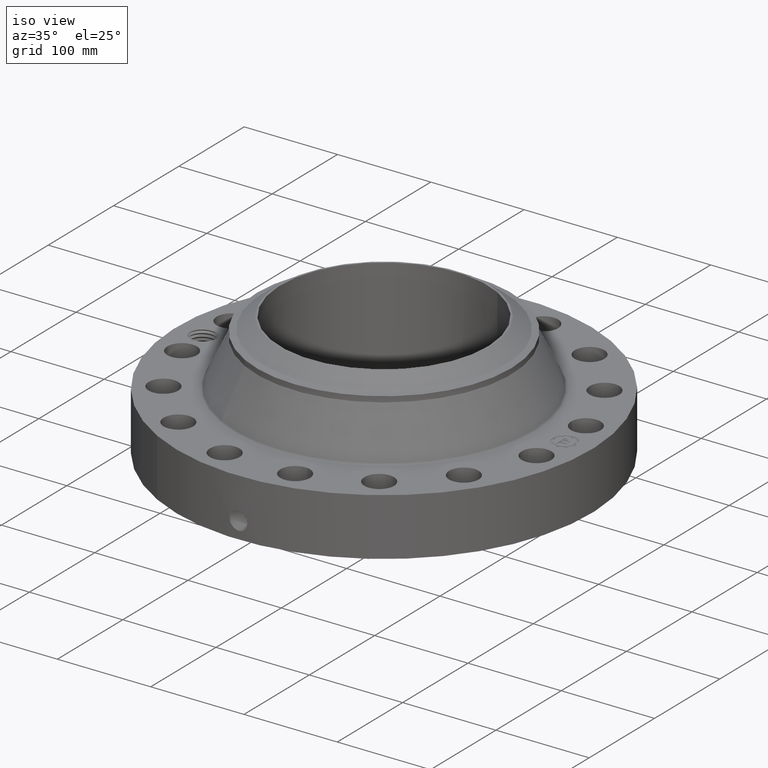
[diagram: clean part render]
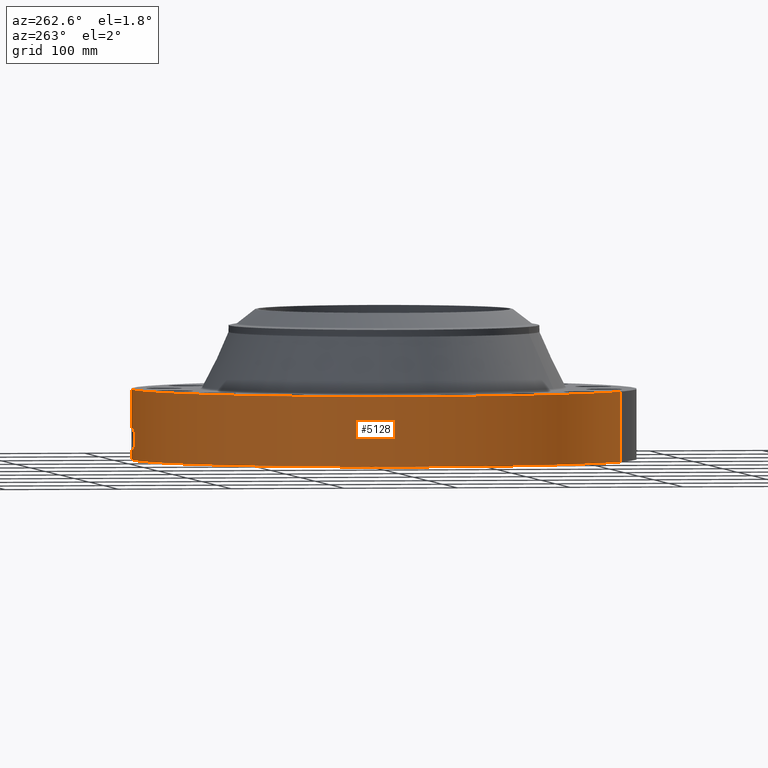
[diagram: tour spotlight — one face highlighted and labeled with its STEP entity id]
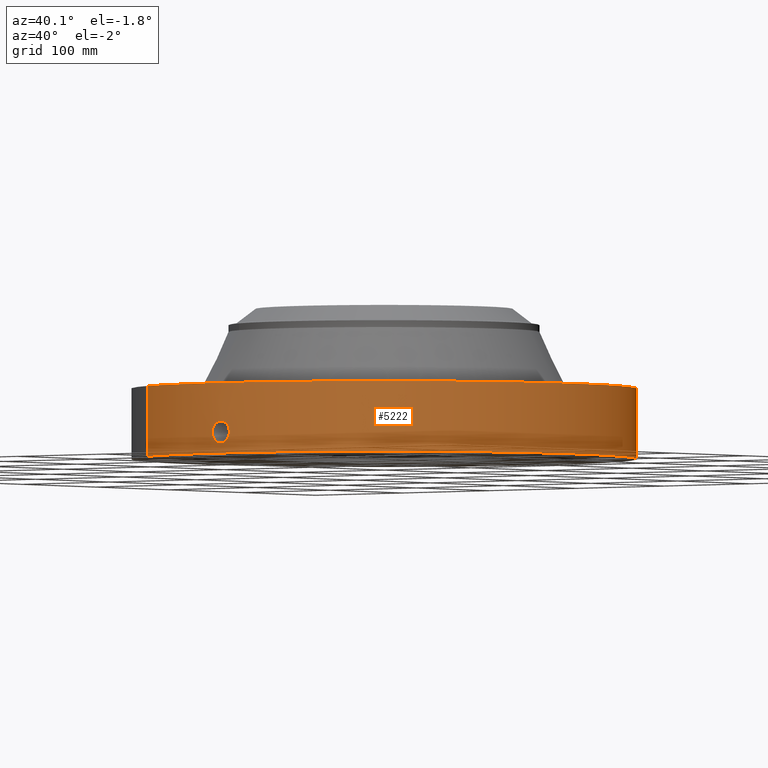
[diagram: tour spotlight — one face highlighted and labeled with its STEP entity id]
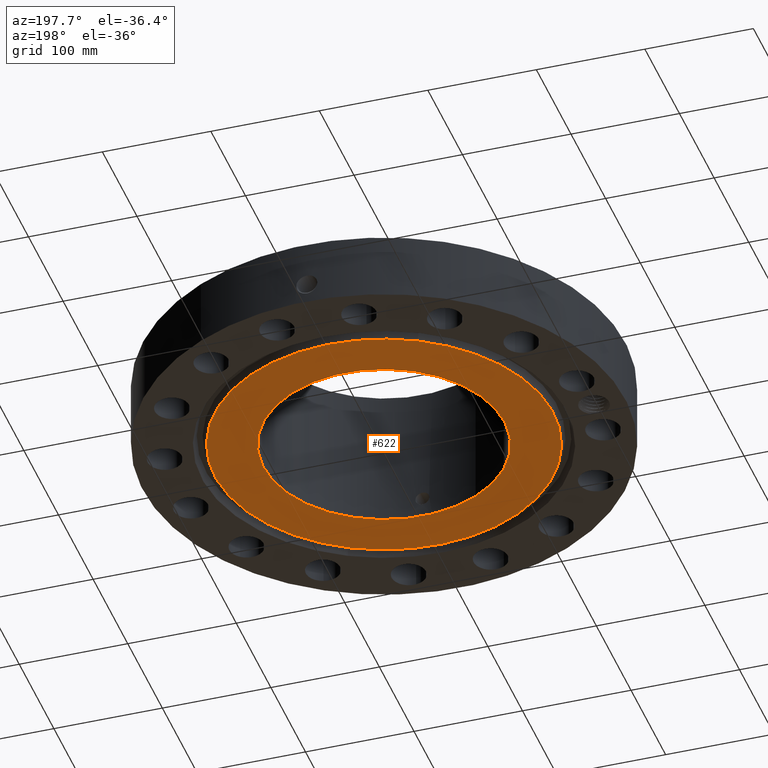
[diagram: tour spotlight — one face highlighted and labeled with its STEP entity id]
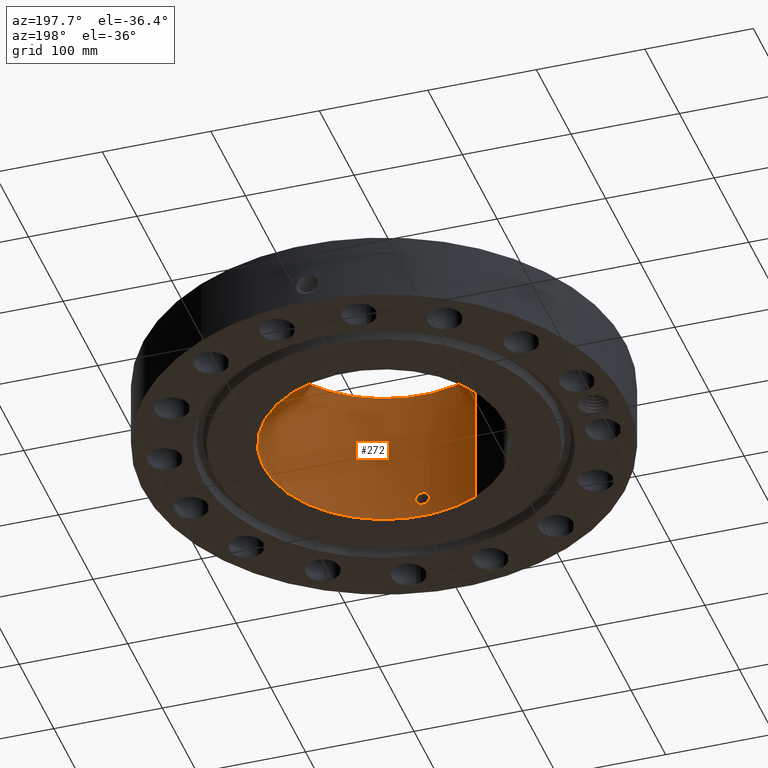
[diagram: tour spotlight — one face highlighted and labeled with its STEP entity id]
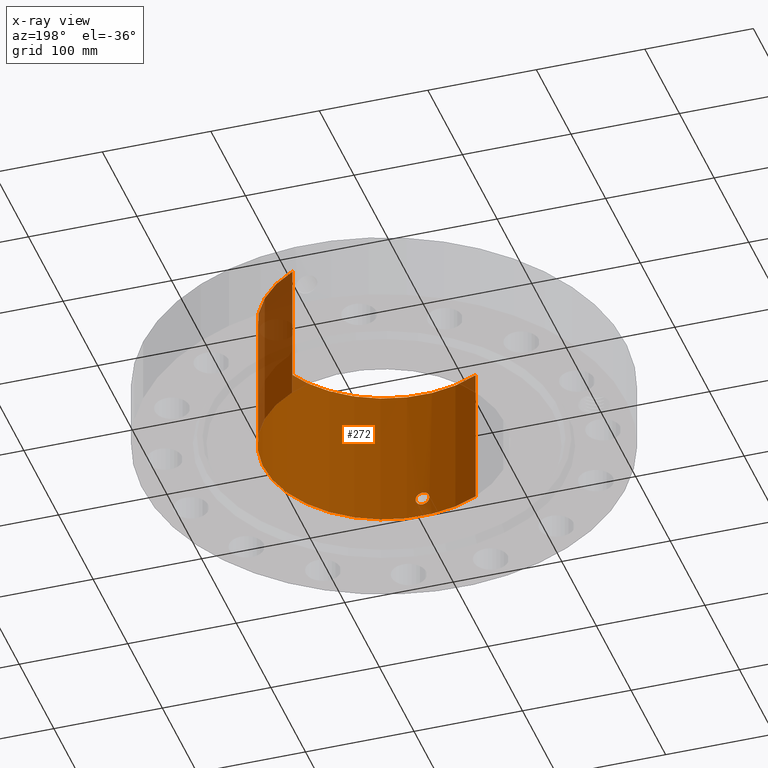
[diagram: x-ray of the same camera — body ghosted, this tour face saturated]
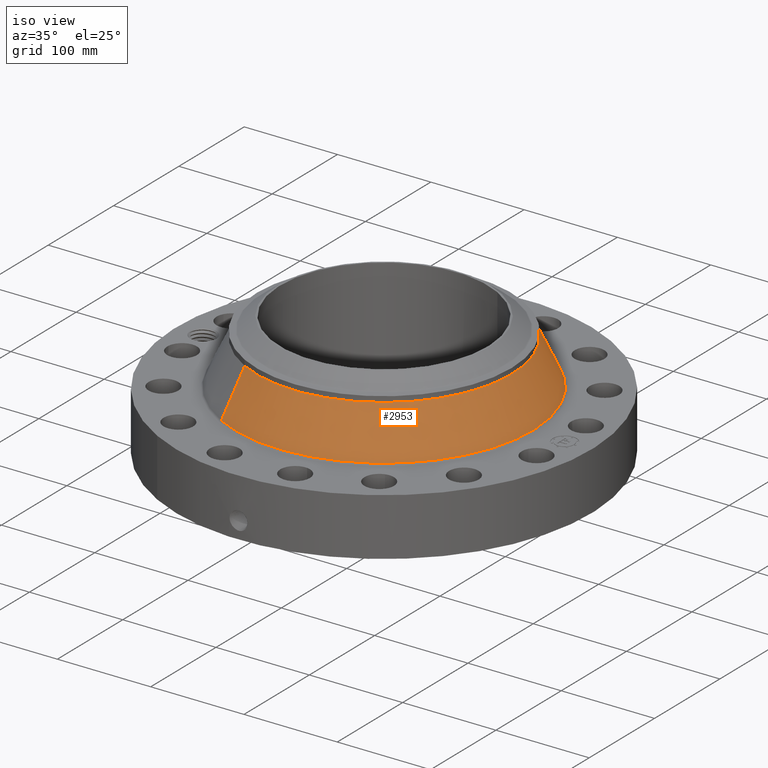
[diagram: tour spotlight — one face highlighted and labeled with its STEP entity id]
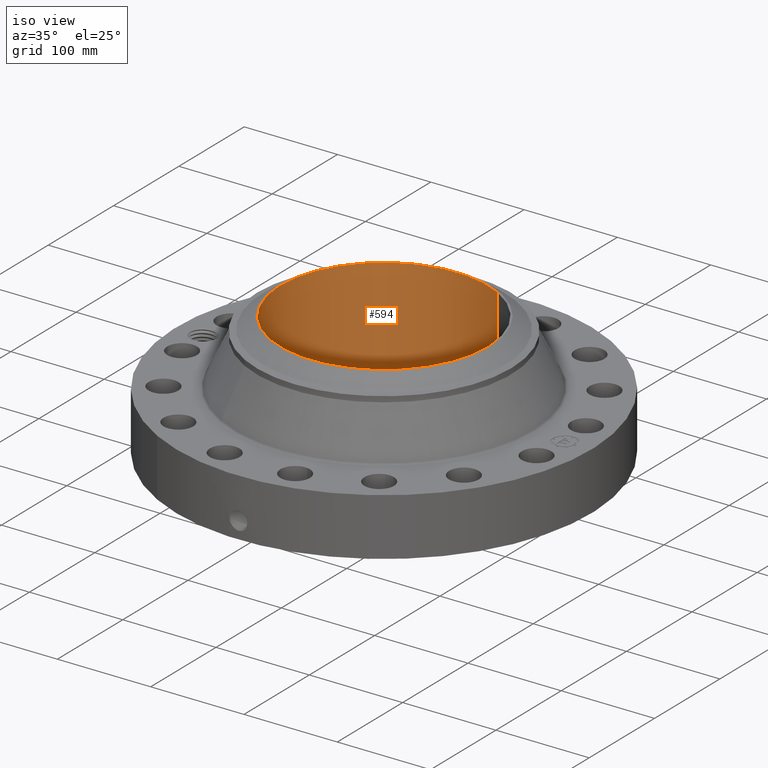
[diagram: tour spotlight — one face highlighted and labeled with its STEP entity id]
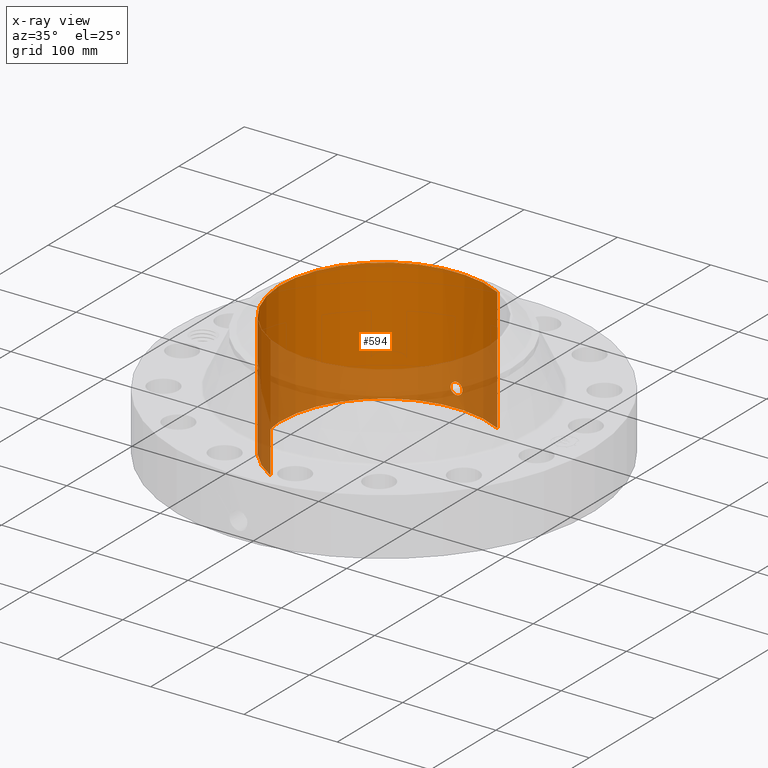
[diagram: x-ray of the same camera — body ghosted, this tour face saturated]
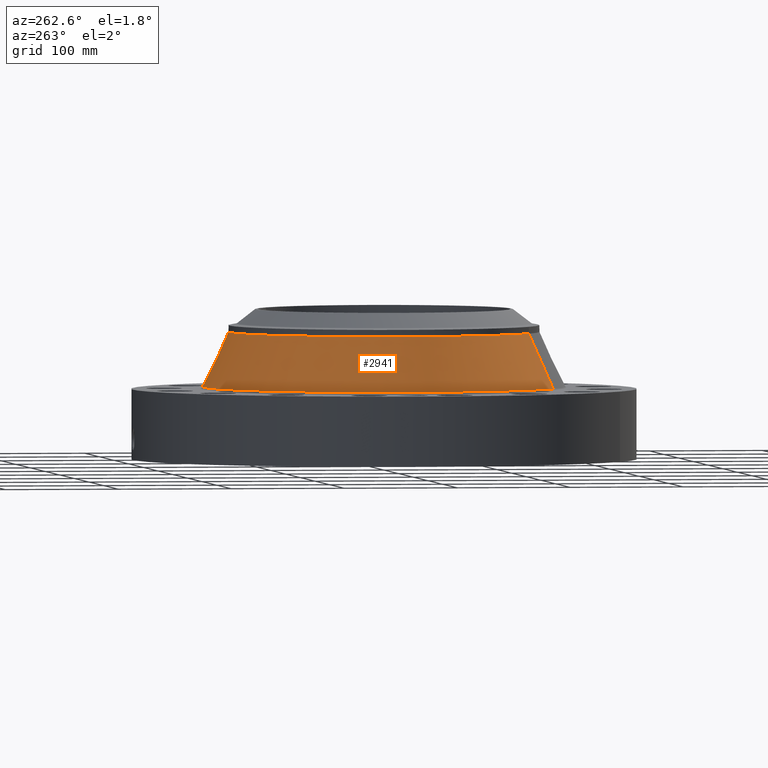
[diagram: tour spotlight — one face highlighted and labeled with its STEP entity id]
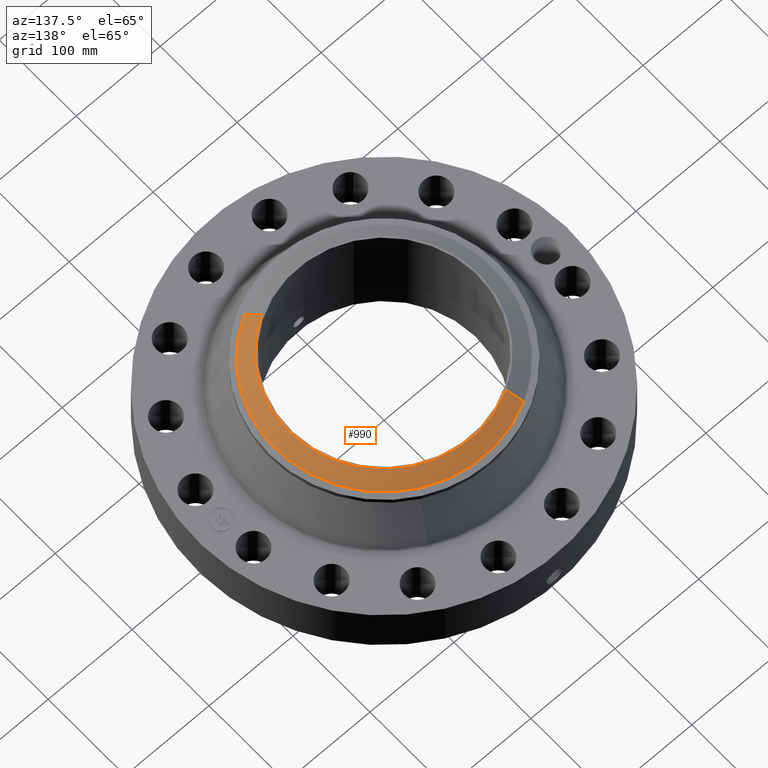
[diagram: tour spotlight — one face highlighted and labeled with its STEP entity id]
A machine part: a face-by-face anatomy tour. The part has 810 B-rep faces; the first image is the clean iso view, then the 8 largest visible faces are spotlighted one at a time (largest first), each with its STEP entity span.

Face 1 — auxiliary view, entity #5128. In plain terms, the highlighted cylindrical surface (partial cylindrical patch) has radius 222.25 mm, axis along (0, 0, -1).
Definition (entity closure, byte-faithful):
#3849=AXIS2_PLACEMENT_3D('Circle Axis2P3D',#3847,#3848,$) ;
#4411=AXIS2_PLACEMENT_3D('Circle Axis2P3D',#4409,#4410,$) ;
#5023=AXIS2_PLACEMENT_3D('Cylinder Axis2P3D',#5020,#5021,#5022) ;
#3847=CARTESIAN_POINT('Axis2P3D Location',(0.,0.,0.)) ;
#3851=CARTESIAN_POINT('Vertex',(-4.1949734628,-7.67884741657,5.59482469102E-016)) ;
#3853=CARTESIAN_POINT('Vertex',(4.1949734628,7.67884741657,5.59482469102E-016)) ;
#4404=CARTESIAN_POINT('Vertex',(4.1949734628,7.67884741657,2.43200000001)) ;
#4406=CARTESIAN_POINT('Vertex',(-4.1949734628,-7.67884741657,2.43200000001)) ;
#4409=CARTESIAN_POINT('Axis2P3D Location',(0.,0.,2.43200000001)) ;
#5020=CARTESIAN_POINT('Axis2P3D Location',(0.,0.,2.59600000001)) ;
#5025=CARTESIAN_POINT('Line Origine',(-4.1949734628,-7.67884741657,1.216)) ;
#5030=CARTESIAN_POINT('Line Origine',(4.1949734628,7.67884741657,1.216)) ;
#5042=CARTESIAN_POINT('Control Point',(-0.0581082113448,8.74980705138,1.09931275918)) ;
#5043=CARTESIAN_POINT('Control Point',(-0.0391507428817,8.74993294954,1.10247040508)) ;
#5044=CARTESIAN_POINT('Control Point',(-0.0199351377873,8.7499983976,1.10407954749)) ;
#5045=CARTESIAN_POINT('Control Point',(-0.000716211241924,8.74999997072,1.10411849893)) ;
#5046=CARTESIAN_POINT('Vertex',(-0.058094103343,8.74980740847,1.09931539446)) ;
#5048=CARTESIAN_POINT('Vertex',(-0.000716087015016,8.74999997073,1.10411850938)) ;
#5052=CARTESIAN_POINT('Control Point',(-0.0580939951518,8.74980714578,1.09931480802)) ;
#5053=CARTESIAN_POINT('Control Point',(-0.0974875527284,8.74954559383,1.09448302669)) ;
#5054=CARTESIAN_POINT('Control Point',(-0.136129795783,8.74901297423,1.08246986474)) ;
#5055=CARTESIAN_POINT('Control Point',(-0.171610206376,8.74831697744,1.06416185771)) ;
#5056=CARTESIAN_POINT('Vertex',(-0.171610206376,8.74831697744,1.06416185771)) ;
#5060=CARTESIAN_POINT('Control Point',(-0.0302669250486,8.74994765206,0.341133857002)) ;
#5061=CARTESIAN_POINT('Control Point',(-0.0865126194243,8.7497530927,0.348286208239)) ;
#5062=CARTESIAN_POINT('Control Point',(-0.14116376928,8.74911210118,0.36589965882)) ;
#5063=CARTESIAN_POINT('Control Point',(-0.191479456618,8.74808366168,0.393467512374)) ;
#5064=CARTESIAN_POINT('Control Point',(-0.264585195594,8.74612690955,0.452883889334)) ;
#5065=CARTESIAN_POINT('Control Point',(-0.31652846254,8.74430507499,0.529208859658)) ;
#5066=CARTESIAN_POINT('Control Point',(-0.33358370049,8.74365536444,0.561880812789)) ;
#5067=CARTESIAN_POINT('Control Point',(-0.368975035582,8.7422470228,0.654035266264)) ;
#5068=CARTESIAN_POINT('Control Point',(-0.375098719304,8.74194353704,0.752677612387)) ;
#5069=CARTESIAN_POINT('Control Point',(-0.366946086317,8.74231502189,0.814326508962)) ;
#5070=CARTESIAN_POINT('Control Point',(-0.333642995804,8.74374181876,0.91228717642)) ;
#5071=CARTESIAN_POINT('Control Point',(-0.27096648017,8.74586349126,0.992724215505)) ;
#5072=CARTESIAN_POINT('Control Point',(-0.241231379529,8.74676440465,1.0214701983)) ;
#5073=CARTESIAN_POINT('Control Point',(-0.207766158995,8.74760772896,1.04550526856)) ;
#5074=CARTESIAN_POINT('Control Point',(-0.171610206376,8.74831697744,1.06416185771)) ;
#5075=CARTESIAN_POINT('Vertex',(-0.0302669250486,8.74994765206,0.341133857002)) ;
#5079=CARTESIAN_POINT('Control Point',(-0.0302669250486,8.74994765206,0.341133857002)) ;
#5080=CARTESIAN_POINT('Control Point',(-0.0201721120829,8.74998257101,0.340866678134)) ;
#5081=CARTESIAN_POINT('Control Point',(-0.0100722667832,8.75000000318,0.340947102439)) ;
#5082=CARTESIAN_POINT('Control Point',(2.72878355316E-006,8.75000000003,0.341374667804)) ;
#5083=CARTESIAN_POINT('Vertex',(2.72878353736E-006,8.75000000003,0.341374667804)) ;
#5087=CARTESIAN_POINT('Control Point',(0.19328241765,8.74786499139,0.39620888473)) ;
#5088=CARTESIAN_POINT('Control Point',(0.149259962967,8.74883765918,0.371336697881)) ;
#5089=CARTESIAN_POINT('Control Point',(0.101168996965,8.74960564166,0.353535751557)) ;
#5090=CARTESIAN_POINT('Control Point',(0.050824675261,8.74999998419,0.34353146512)) ;
#5091=CARTESIAN_POINT('Control Point',(2.72878352208E-006,8.75000000003,0.341374667805)) ;
#5092=CARTESIAN_POINT('Vertex',(0.19328241765,8.74786499139,0.39620888473)) ;
#5096=CARTESIAN_POINT('Control Point',(0.19328241765,8.74786499139,0.39620888473)) ;
#5097=CARTESIAN_POINT('Control Point',(0.222320013082,8.74722341123,0.41261479561)) ;
#5098=CARTESIAN_POINT('Control Point',(0.24970283303,8.74649785024,0.431904366718)) ;
#5099=CARTESIAN_POINT('Control Point',(0.275025863035,8.74572454017,0.453907776928)) ;
#5100=CARTESIAN_POINT('Control Point',(0.341959797303,8.74345929158,0.525550661298)) ;
#5101=CARTESIAN_POINT('Control Point',(0.384721449512,8.74158000139,0.615221601603)) ;
#5102=CARTESIAN_POINT('Control Point',(0.399824067784,8.74084549811,0.679596595806)) ;
#5103=CARTESIAN_POINT('Control Point',(0.400741251075,8.74084616897,0.793900913623)) ;
#5104=CARTESIAN_POINT('Control Point',(0.360682759971,8.74259093656,0.898628588541)) ;
#5105=CARTESIAN_POINT('Control Point',(0.33643493473,8.74359787649,0.940095914435)) ;
#5106=CARTESIAN_POINT('Control Point',(0.267541262051,8.74613174516,1.02398894546)) ;
#5107=CARTESIAN_POINT('Control Point',(0.174601905305,8.74851033423,1.07870829017)) ;
#5108=CARTESIAN_POINT('Control Point',(0.117427757642,8.74951483366,1.09858358612)) ;
#5109=CARTESIAN_POINT('Control Point',(0.0582716037234,8.75000017228,1.10701111984)) ;
#5110=CARTESIAN_POINT('Control Point',(-2.5857935541E-005,8.75,1.10415298432)) ;
#5111=CARTESIAN_POINT('Vertex',(-2.58579355373E-005,8.75,1.10415298432)) ;
#5115=CARTESIAN_POINT('Control Point',(-0.000716087004832,8.74999997073,1.10411850936)) ;
#5116=CARTESIAN_POINT('Control Point',(-0.000370996506643,8.74999999898,1.1041360633)) ;
#5117=CARTESIAN_POINT('Control Point',(-2.58579413375E-005,8.75,1.10415298432)) ;
#3848=DIRECTION('Axis2P3D Direction',(0.,0.,-0.0393700787402)) ;
#4410=DIRECTION('Axis2P3D Direction',(0.,0.,-0.0393700787402)) ;
#5021=DIRECTION('Axis2P3D Direction',(0.,0.,-0.0393700787402)) ;
#5022=DIRECTION('Axis2P3D XDirection',(0.0188750212049,0.0345504945626,0.)) ;
#5026=DIRECTION('Vector Direction',(0.,0.,-0.0393700787402)) ;
#5031=DIRECTION('Vector Direction',(0.,0.,-0.0393700787402)) ;
#5027=VECTOR('Line Direction',#5026,0.0393700787402) ;
#5032=VECTOR('Line Direction',#5031,0.0393700787402) ;
#5036=ORIENTED_EDGE('',*,*,#3855,.F.) ;
#5037=ORIENTED_EDGE('',*,*,#5029,.T.) ;
#5038=ORIENTED_EDGE('',*,*,#4413,.T.) ;
#5039=ORIENTED_EDGE('',*,*,#5034,.F.) ;
#5120=ORIENTED_EDGE('',*,*,#5050,.F.) ;
#5121=ORIENTED_EDGE('',*,*,#5058,.T.) ;
#5122=ORIENTED_EDGE('',*,*,#5077,.F.) ;
#5123=ORIENTED_EDGE('',*,*,#5085,.T.) ;
#5124=ORIENTED_EDGE('',*,*,#5094,.F.) ;
#5125=ORIENTED_EDGE('',*,*,#5113,.T.) ;
#5126=ORIENTED_EDGE('',*,*,#5118,.F.) ;
#5127=FACE_BOUND('',#5119,.T.) ;
#5128=ADVANCED_FACE('PartBody',(#5040,#5127),#5024,.T.) ;
#5041=B_SPLINE_CURVE_WITH_KNOTS('',3,(#5042,#5043,#5044,#5045),.UNSPECIFIED.,.F.,.U.,(4,4),(4.38919203674,6.52135752037),.UNSPECIFIED.) ;
#5051=B_SPLINE_CURVE_WITH_KNOTS('',3,(#5052,#5053,#5054,#5055),.UNSPECIFIED.,.F.,.U.,(4,4),(0.,4.45945184448),.UNSPECIFIED.) ;
#5059=B_SPLINE_CURVE_WITH_KNOTS('',5,(#5060,#5061,#5062,#5063,#5064,#5065,#5066,#5067,#5068,#5069,#5070,#5071,#5072,#5073,#5074),.UNSPECIFIED.,.F.,.U.,(6,3,3,3,6),(0.,9.85389436103,16.4310832894,27.594165801,35.1680977881),.UNSPECIFIED.) ;
#5078=B_SPLINE_CURVE_WITH_KNOTS('',3,(#5079,#5080,#5081,#5082),.UNSPECIFIED.,.F.,.U.,(4,4),(0.,1.05295486204),.UNSPECIFIED.) ;
#5086=B_SPLINE_CURVE_WITH_KNOTS('',4,(#5087,#5088,#5089,#5090,#5091),.UNSPECIFIED.,.F.,.U.,(5,5),(0.,7.08198369673),.UNSPECIFIED.) ;
#5095=B_SPLINE_CURVE_WITH_KNOTS('',5,(#5096,#5097,#5098,#5099,#5100,#5101,#5102,#5103,#5104,#5105,#5106,#5107,#5108,#5109,#5110),.UNSPECIFIED.,.F.,.U.,(6,3,3,3,6),(0.,5.83917277882,17.1007667658,25.5637802496,36.4607847186),.UNSPECIFIED.) ;
#5114=B_SPLINE_CURVE_WITH_KNOTS('',2,(#5115,#5116,#5117),.UNSPECIFIED.,.F.,.U.,(3,3),(1.04630914316,1.07211456638),.UNSPECIFIED.) ;
#3850=CIRCLE('generated circle',#3849,8.75000000003) ;
#4412=CIRCLE('generated circle',#4411,8.75000000003) ;
#5024=CYLINDRICAL_SURFACE('generated cylinder',#5023,8.75000000003) ;
#3855=EDGE_CURVE('',#3852,#3854,#3850,.T.) ;
#4413=EDGE_CURVE('',#4407,#4405,#4412,.T.) ;
#5029=EDGE_CURVE('',#3852,#4407,#5028,.F.) ;
#5034=EDGE_CURVE('',#3854,#4405,#5033,.F.) ;
#5050=EDGE_CURVE('',#5047,#5049,#5041,.T.) ;
#5058=EDGE_CURVE('',#5047,#5057,#5051,.T.) ;
#5077=EDGE_CURVE('',#5076,#5057,#5059,.T.) ;
#5085=EDGE_CURVE('',#5076,#5084,#5078,.T.) ;
#5094=EDGE_CURVE('',#5093,#5084,#5086,.T.) ;
#5113=EDGE_CURVE('',#5093,#5112,#5095,.T.) ;
#5118=EDGE_CURVE('',#5049,#5112,#5114,.T.) ;
#5035=EDGE_LOOP('',(#5036,#5037,#5038,#5039)) ;
#5119=EDGE_LOOP('',(#5120,#5121,#5122,#5123,#5124,#5125,#5126)) ;
#5040=FACE_OUTER_BOUND('',#5035,.T.) ;
#5028=LINE('Line',#5025,#5027) ;
#5033=LINE('Line',#5030,#5032) ;
#3852=VERTEX_POINT('',#3851) ;
#3854=VERTEX_POINT('',#3853) ;
#4405=VERTEX_POINT('',#4404) ;
#4407=VERTEX_POINT('',#4406) ;
#5047=VERTEX_POINT('',#5046) ;
#5049=VERTEX_POINT('',#5048) ;
#5057=VERTEX_POINT('',#5056) ;
#5076=VERTEX_POINT('',#5075) ;
#5084=VERTEX_POINT('',#5083) ;
#5093=VERTEX_POINT('',#5092) ;
#5112=VERTEX_POINT('',#5111) ;

Face 2 — auxiliary view, entity #5222. In plain terms, the highlighted cylindrical surface (partial cylindrical patch) has radius 222.25 mm, axis along (0, 0, -1).
Definition (entity closure, byte-faithful):
#3858=AXIS2_PLACEMENT_3D('Circle Axis2P3D',#3856,#3857,$) ;
#4402=AXIS2_PLACEMENT_3D('Circle Axis2P3D',#4400,#4401,$) ;
#5023=AXIS2_PLACEMENT_3D('Cylinder Axis2P3D',#5020,#5021,#5022) ;
#3851=CARTESIAN_POINT('Vertex',(-4.1949734628,-7.67884741657,5.59482469102E-016)) ;
#3853=CARTESIAN_POINT('Vertex',(4.1949734628,7.67884741657,5.59482469102E-016)) ;
#3856=CARTESIAN_POINT('Axis2P3D Location',(0.,0.,0.)) ;
#4400=CARTESIAN_POINT('Axis2P3D Location',(0.,0.,2.43200000001)) ;
#4404=CARTESIAN_POINT('Vertex',(4.1949734628,7.67884741657,2.43200000001)) ;
#4406=CARTESIAN_POINT('Vertex',(-4.1949734628,-7.67884741657,2.43200000001)) ;
#5020=CARTESIAN_POINT('Axis2P3D Location',(0.,0.,2.59600000001)) ;
#5025=CARTESIAN_POINT('Line Origine',(-4.1949734628,-7.67884741657,1.216)) ;
#5030=CARTESIAN_POINT('Line Origine',(4.1949734628,7.67884741657,1.216)) ;
#5136=CARTESIAN_POINT('Control Point',(0.0581082113383,-8.74980705138,1.09931275918)) ;
#5137=CARTESIAN_POINT('Control Point',(0.039150742874,-8.74993294954,1.10247040508)) ;
#5138=CARTESIAN_POINT('Control Point',(0.0199351377814,-8.7499983976,1.10407954749)) ;
#5139=CARTESIAN_POINT('Control Point',(0.00071621124183,-8.74999997072,1.10411849893)) ;
#5140=CARTESIAN_POINT('Vertex',(0.058094103343,-8.74980740847,1.09931539446)) ;
#5142=CARTESIAN_POINT('Vertex',(0.000716087015019,-8.74999997073,1.10411850938)) ;
#5146=CARTESIAN_POINT('Control Point',(0.0580939951518,-8.74980714578,1.09931480802)) ;
#5147=CARTESIAN_POINT('Control Point',(0.0974875527275,-8.74954559383,1.09448302669)) ;
#5148=CARTESIAN_POINT('Control Point',(0.136129795784,-8.74901297423,1.08246986474)) ;
#5149=CARTESIAN_POINT('Control Point',(0.171610206376,-8.74831697744,1.06416185771)) ;
#5150=CARTESIAN_POINT('Vertex',(0.171610206376,-8.74831697744,1.06416185771)) ;
#5154=CARTESIAN_POINT('Control Point',(0.0302669250486,-8.74994765206,0.341133857002)) ;
#5155=CARTESIAN_POINT('Control Point',(0.0865126194046,-8.7497530927,0.348286208237)) ;
#5156=CARTESIAN_POINT('Control Point',(0.141163769242,-8.74911210118,0.365899658808)) ;
#5157=CARTESIAN_POINT('Control Point',(0.191479456572,-8.74808366168,0.393467512349)) ;
#5158=CARTESIAN_POINT('Control Point',(0.264585195535,-8.74612690955,0.452883889278)) ;
#5159=CARTESIAN_POINT('Control Point',(0.316528462483,-8.74430507499,0.529208859564)) ;
#5160=CARTESIAN_POINT('Control Point',(0.333583700461,-8.74365536444,0.561880812728)) ;
#5161=CARTESIAN_POINT('Control Point',(0.368975035552,-8.7422470228,0.654035266154)) ;
#5162=CARTESIAN_POINT('Control Point',(0.375098719306,-8.74194353704,0.752677612227)) ;
#5163=CARTESIAN_POINT('Control Point',(0.366946086312,-8.74231502189,0.81432650894)) ;
#5164=CARTESIAN_POINT('Control Point',(0.333642995812,-8.74374181876,0.912287176405)) ;
#5165=CARTESIAN_POINT('Control Point',(0.270966480182,-8.74586349126,0.9927242155)) ;
#5166=CARTESIAN_POINT('Control Point',(0.241231379591,-8.74676440465,1.02147019826)) ;
#5167=CARTESIAN_POINT('Control Point',(0.207766159028,-8.74760772896,1.04550526854)) ;
#5168=CARTESIAN_POINT('Control Point',(0.171610206376,-8.74831697744,1.06416185771)) ;
#5169=CARTESIAN_POINT('Vertex',(0.0302669250486,-8.74994765206,0.341133857002)) ;
#5173=CARTESIAN_POINT('Control Point',(0.0302669250486,-8.74994765206,0.341133857002)) ;
#5174=CARTESIAN_POINT('Control Point',(0.0201721120829,-8.74998257101,0.340866678134)) ;
#5175=CARTESIAN_POINT('Control Point',(0.0100722667832,-8.75000000318,0.340947102439)) ;
#5176=CARTESIAN_POINT('Control Point',(-2.72878353091E-006,-8.75000000003,0.341374667804)) ;
#5177=CARTESIAN_POINT('Vertex',(-2.72878353845E-006,-8.75000000003,0.341374667804)) ;
#5181=CARTESIAN_POINT('Control Point',(-0.19328241765,-8.74786499139,0.39620888473)) ;
#5182=CARTESIAN_POINT('Control Point',(-0.149259962976,-8.74883765918,0.371336697886)) ;
#5183=CARTESIAN_POINT('Control Point',(-0.101168996964,-8.74960564166,0.353535751559)) ;
#5184=CARTESIAN_POINT('Control Point',(-0.05082467525,-8.74999998419,0.343531465119)) ;
#5185=CARTESIAN_POINT('Control Point',(-2.72878353091E-006,-8.75000000003,0.341374667805)) ;
#5186=CARTESIAN_POINT('Vertex',(-0.19328241765,-8.74786499139,0.39620888473)) ;
#5190=CARTESIAN_POINT('Control Point',(-0.19328241765,-8.74786499139,0.39620888473)) ;
#5191=CARTESIAN_POINT('Control Point',(-0.222320013047,-8.74722341123,0.41261479559)) ;
#5192=CARTESIAN_POINT('Control Point',(-0.249702832965,-8.74649785024,0.431904366672)) ;
#5193=CARTESIAN_POINT('Control Point',(-0.275025862922,-8.74572454017,0.453907776828)) ;
#5194=CARTESIAN_POINT('Control Point',(-0.3419597972,-8.74345929159,0.525550661144)) ;
#5195=CARTESIAN_POINT('Control Point',(-0.384721449447,-8.7415800014,0.615221601397)) ;
#5196=CARTESIAN_POINT('Control Point',(-0.399824067752,-8.74084549811,0.679596595565)) ;
#5197=CARTESIAN_POINT('Control Point',(-0.400741251115,-8.74084616896,0.793900913396)) ;
#5198=CARTESIAN_POINT('Control Point',(-0.360682760066,-8.74259093656,0.898628588351)) ;
#5199=CARTESIAN_POINT('Control Point',(-0.336434934861,-8.74359787649,0.940095914243)) ;
#5200=CARTESIAN_POINT('Control Point',(-0.267541262202,-8.74613174515,1.02398894535)) ;
#5201=CARTESIAN_POINT('Control Point',(-0.174601905439,-8.74851033423,1.07870829012)) ;
#5202=CARTESIAN_POINT('Control Point',(-0.117427757719,-8.74951483366,1.09858358611)) ;
#5203=CARTESIAN_POINT('Control Point',(-0.0582716037616,-8.75000017228,1.10701111984)) ;
#5204=CARTESIAN_POINT('Control Point',(2.58579355322E-005,-8.75,1.10415298432)) ;
#5205=CARTESIAN_POINT('Vertex',(2.58579355363E-005,-8.75,1.10415298432)) ;
#5209=CARTESIAN_POINT('Control Point',(0.000716087004833,-8.74999997073,1.10411850936)) ;
#5210=CARTESIAN_POINT('Control Point',(0.000370996506658,-8.74999999898,1.1041360633)) ;
#5211=CARTESIAN_POINT('Control Point',(2.58579413648E-005,-8.75,1.10415298432)) ;
#3857=DIRECTION('Axis2P3D Direction',(0.,0.,-0.0393700787402)) ;
#4401=DIRECTION('Axis2P3D Direction',(0.,0.,-0.0393700787402)) ;
#5021=DIRECTION('Axis2P3D Direction',(0.,0.,-0.0393700787402)) ;
#5022=DIRECTION('Axis2P3D XDirection',(0.0188750212049,0.0345504945626,0.)) ;
#5026=DIRECTION('Vector Direction',(0.,0.,-0.0393700787402)) ;
#5031=DIRECTION('Vector Direction',(0.,0.,-0.0393700787402)) ;
#5027=VECTOR('Line Direction',#5026,0.0393700787402) ;
#5032=VECTOR('Line Direction',#5031,0.0393700787402) ;
#5130=ORIENTED_EDGE('',*,*,#3860,.F.) ;
#5131=ORIENTED_EDGE('',*,*,#5034,.T.) ;
#5132=ORIENTED_EDGE('',*,*,#4408,.T.) ;
#5133=ORIENTED_EDGE('',*,*,#5029,.F.) ;
#5214=ORIENTED_EDGE('',*,*,#5144,.F.) ;
#5215=ORIENTED_EDGE('',*,*,#5152,.T.) ;
#5216=ORIENTED_EDGE('',*,*,#5171,.F.) ;
#5217=ORIENTED_EDGE('',*,*,#5179,.T.) ;
#5218=ORIENTED_EDGE('',*,*,#5188,.F.) ;
#5219=ORIENTED_EDGE('',*,*,#5207,.T.) ;
#5220=ORIENTED_EDGE('',*,*,#5212,.F.) ;
#5221=FACE_BOUND('',#5213,.T.) ;
#5222=ADVANCED_FACE('PartBody',(#5134,#5221),#5024,.T.) ;
#5135=B_SPLINE_CURVE_WITH_KNOTS('',3,(#5136,#5137,#5138,#5139),.UNSPECIFIED.,.F.,.U.,(4,4),(4.38919203572,6.52135751862),.UNSPECIFIED.) ;
#5145=B_SPLINE_CURVE_WITH_KNOTS('',3,(#5146,#5147,#5148,#5149),.UNSPECIFIED.,.F.,.U.,(4,4),(0.,4.45945184438),.UNSPECIFIED.) ;
#5153=B_SPLINE_CURVE_WITH_KNOTS('',5,(#5154,#5155,#5156,#5157,#5158,#5159,#5160,#5161,#5162,#5163,#5164,#5165,#5166,#5167,#5168),.UNSPECIFIED.,.F.,.U.,(6,3,3,3,6),(0.,9.85389435759,16.431083284,27.5941657892,35.1680977834),.UNSPECIFIED.) ;
#5172=B_SPLINE_CURVE_WITH_KNOTS('',3,(#5173,#5174,#5175,#5176),.UNSPECIFIED.,.F.,.U.,(4,4),(0.,1.05295486204),.UNSPECIFIED.) ;
#5180=B_SPLINE_CURVE_WITH_KNOTS('',4,(#5181,#5182,#5183,#5184,#5185),.UNSPECIFIED.,.F.,.U.,(5,5),(0.,7.0819836952),.UNSPECIFIED.) ;
#5189=B_SPLINE_CURVE_WITH_KNOTS('',5,(#5190,#5191,#5192,#5193,#5194,#5195,#5196,#5197,#5198,#5199,#5200,#5201,#5202,#5203,#5204),.UNSPECIFIED.,.F.,.U.,(6,3,3,3,6),(0.,5.83917277188,17.1007667604,25.5637802448,36.460784721),.UNSPECIFIED.) ;
#5208=B_SPLINE_CURVE_WITH_KNOTS('',2,(#5209,#5210,#5211),.UNSPECIFIED.,.F.,.U.,(3,3),(1.04630914316,1.07211456638),.UNSPECIFIED.) ;
#3859=CIRCLE('generated circle',#3858,8.75000000003) ;
#4403=CIRCLE('generated circle',#4402,8.75000000003) ;
#5024=CYLINDRICAL_SURFACE('generated cylinder',#5023,8.75000000003) ;
#3860=EDGE_CURVE('',#3854,#3852,#3859,.T.) ;
#4408=EDGE_CURVE('',#4405,#4407,#4403,.T.) ;
#5029=EDGE_CURVE('',#3852,#4407,#5028,.F.) ;
#5034=EDGE_CURVE('',#3854,#4405,#5033,.F.) ;
#5144=EDGE_CURVE('',#5141,#5143,#5135,.T.) ;
#5152=EDGE_CURVE('',#5141,#5151,#5145,.T.) ;
#5171=EDGE_CURVE('',#5170,#5151,#5153,.T.) ;
#5179=EDGE_CURVE('',#5170,#5178,#5172,.T.) ;
#5188=EDGE_CURVE('',#5187,#5178,#5180,.T.) ;
#5207=EDGE_CURVE('',#5187,#5206,#5189,.T.) ;
#5212=EDGE_CURVE('',#5143,#5206,#5208,.T.) ;
#5129=EDGE_LOOP('',(#5130,#5131,#5132,#5133)) ;
#5213=EDGE_LOOP('',(#5214,#5215,#5216,#5217,#5218,#5219,#5220)) ;
#5134=FACE_OUTER_BOUND('',#5129,.T.) ;
#5028=LINE('Line',#5025,#5027) ;
#5033=LINE('Line',#5030,#5032) ;
#3852=VERTEX_POINT('',#3851) ;
#3854=VERTEX_POINT('',#3853) ;
#4405=VERTEX_POINT('',#4404) ;
#4407=VERTEX_POINT('',#4406) ;
#5141=VERTEX_POINT('',#5140) ;
#5143=VERTEX_POINT('',#5142) ;
#5151=VERTEX_POINT('',#5150) ;
#5170=VERTEX_POINT('',#5169) ;
#5178=VERTEX_POINT('',#5177) ;
#5187=VERTEX_POINT('',#5186) ;
#5206=VERTEX_POINT('',#5205) ;

Face 3 — auxiliary view, entity #622. In plain terms, the highlighted planar face has unit normal (0, 0, -1).
Definition (entity closure, byte-faithful):
#252=AXIS2_PLACEMENT_3D('Circle Axis2P3D',#250,#251,$) ;
#543=AXIS2_PLACEMENT_3D('Circle Axis2P3D',#541,#542,$) ;
#598=AXIS2_PLACEMENT_3D('Plane Axis2P3D',#595,#596,#597) ;
#602=AXIS2_PLACEMENT_3D('Circle Axis2P3D',#600,#601,$) ;
#611=AXIS2_PLACEMENT_3D('Circle Axis2P3D',#609,#610,$) ;
#247=CARTESIAN_POINT('Vertex',(2.0974867314,3.83942370829,-2.01413688877E-014)) ;
#250=CARTESIAN_POINT('Axis2P3D Location',(0.,0.,-2.01413688877E-014)) ;
#254=CARTESIAN_POINT('Vertex',(-2.0974867314,-3.83942370829,-2.01413688877E-014)) ;
#541=CARTESIAN_POINT('Axis2P3D Location',(0.,0.,-2.01413688877E-014)) ;
#595=CARTESIAN_POINT('Axis2P3D Location',(0.,4.37500000002,0.)) ;
#600=CARTESIAN_POINT('Axis2P3D Location',(2.23792987641E-015,5.59482469102E-016,0.)) ;
#604=CARTESIAN_POINT('Vertex',(-2.94391251981,5.38879572131,0.)) ;
#606=CARTESIAN_POINT('Vertex',(2.94391251981,-5.38879572131,0.)) ;
#609=CARTESIAN_POINT('Axis2P3D Location',(5.59482469102E-016,5.59482469102E-016,0.)) ;
#251=DIRECTION('Axis2P3D Direction',(0.,0.,-0.0393700787402)) ;
#542=DIRECTION('Axis2P3D Direction',(0.,0.,-0.0393700787402)) ;
#596=DIRECTION('Axis2P3D Direction',(0.,0.,-0.0393700787402)) ;
#597=DIRECTION('Axis2P3D XDirection',(0.0393700787402,0.,0.)) ;
#601=DIRECTION('Axis2P3D Direction',(0.,0.,-0.0393700787402)) ;
#610=DIRECTION('Axis2P3D Direction',(0.,0.,-0.0393700787402)) ;
#615=ORIENTED_EDGE('',*,*,#608,.T.) ;
#616=ORIENTED_EDGE('',*,*,#613,.T.) ;
#619=ORIENTED_EDGE('',*,*,#256,.F.) ;
#620=ORIENTED_EDGE('',*,*,#545,.F.) ;
#621=FACE_BOUND('',#618,.T.) ;
#622=ADVANCED_FACE('PartBody',(#617,#621),#599,.T.) ;
#253=CIRCLE('generated circle',#252,4.37500000002) ;
#544=CIRCLE('generated circle',#543,4.37500000002) ;
#603=CIRCLE('generated circle',#602,6.14050000002) ;
#612=CIRCLE('generated circle',#611,6.14050000002) ;
#256=EDGE_CURVE('',#248,#255,#253,.T.) ;
#545=EDGE_CURVE('',#255,#248,#544,.T.) ;
#608=EDGE_CURVE('',#605,#607,#603,.T.) ;
#613=EDGE_CURVE('',#607,#605,#612,.T.) ;
#614=EDGE_LOOP('',(#615,#616)) ;
#618=EDGE_LOOP('',(#619,#620)) ;
#617=FACE_OUTER_BOUND('',#614,.T.) ;
#599=PLANE('',#598) ;
#248=VERTEX_POINT('',#247) ;
#255=VERTEX_POINT('',#254) ;
#605=VERTEX_POINT('',#604) ;
#607=VERTEX_POINT('',#606) ;

Face 4 — auxiliary view, entity #272. An x-ray twin of the same camera follows (body ghosted, this face saturated) — the face is partly hidden behind the body. In plain terms, the highlighted cylindrical surface (partial cylindrical patch) has radius 111.125 mm, axis along (0, 0, -1).
Definition (entity closure, byte-faithful):
#232=AXIS2_PLACEMENT_3D('Cylinder Axis2P3D',#229,#230,#231) ;
#236=AXIS2_PLACEMENT_3D('Circle Axis2P3D',#234,#235,$) ;
#252=AXIS2_PLACEMENT_3D('Circle Axis2P3D',#250,#251,$) ;
#81=CARTESIAN_POINT('Control Point',(0.219395640473,-4.3694954575,0.630143615351)) ;
#82=CARTESIAN_POINT('Control Point',(0.206921825529,-4.37012177709,0.607310450253)) ;
#83=CARTESIAN_POINT('Control Point',(0.191478820822,-4.37085255632,0.586102226291)) ;
#84=CARTESIAN_POINT('Control Point',(0.173346678082,-4.37163130864,0.567031410672)) ;
#85=CARTESIAN_POINT('Control Point',(0.112147099941,-4.37388338832,0.517558317423)) ;
#86=CARTESIAN_POINT('Control Point',(0.0350000304375,-4.37534654492,0.494030721944)) ;
#87=CARTESIAN_POINT('Control Point',(-0.0195411068769,-4.37545612803,0.492387758496)) ;
#88=CARTESIAN_POINT('Control Point',(-0.124120614821,-4.37384640695,0.517520113643)) ;
#89=CARTESIAN_POINT('Control Point',(-0.20316221988,-4.37051308831,0.590409202701)) ;
#90=CARTESIAN_POINT('Control Point',(-0.232145159541,-4.36887123291,0.636611390542)) ;
#91=CARTESIAN_POINT('Control Point',(-0.255829518371,-4.36751853946,0.714772428405)) ;
#92=CARTESIAN_POINT('Control Point',(-0.248302224316,-4.36794807797,0.794173371269)) ;
#93=CARTESIAN_POINT('Control Point',(-0.242067994124,-4.36830910199,0.820766986786)) ;
#94=CARTESIAN_POINT('Control Point',(-0.232327425774,-4.36884614287,0.846184910441)) ;
#95=CARTESIAN_POINT('Control Point',(-0.219395640473,-4.3694954575,0.869856384655)) ;
#96=CARTESIAN_POINT('Vertex',(0.219395640473,-4.3694954575,0.630143615351)) ;
#98=CARTESIAN_POINT('Vertex',(-0.219395640473,-4.3694954575,0.869856384655)) ;
#206=CARTESIAN_POINT('Control Point',(-0.219395640473,-4.3694954575,0.869856384655)) ;
#207=CARTESIAN_POINT('Control Point',(-0.206921825532,-4.37012177709,0.892689549747)) ;
#208=CARTESIAN_POINT('Control Point',(-0.19147882083,-4.37085255632,0.913897773705)) ;
#209=CARTESIAN_POINT('Control Point',(-0.173346678072,-4.37163130864,0.932968589343)) ;
#210=CARTESIAN_POINT('Control Point',(-0.112147099926,-4.37388338832,0.982441682592)) ;
#211=CARTESIAN_POINT('Control Point',(-0.0350000304162,-4.37534654492,1.00596927807)) ;
#212=CARTESIAN_POINT('Control Point',(0.019541106856,-4.37545612804,1.00761224152)) ;
#213=CARTESIAN_POINT('Control Point',(0.124120614818,-4.37384640694,0.98247988637)) ;
#214=CARTESIAN_POINT('Control Point',(0.203162219886,-4.37051308832,0.909590797299)) ;
#215=CARTESIAN_POINT('Control Point',(0.232145159539,-4.36887123291,0.863388609471)) ;
#216=CARTESIAN_POINT('Control Point',(0.255829518368,-4.36751853946,0.785227571613)) ;
#217=CARTESIAN_POINT('Control Point',(0.248302224318,-4.36794807797,0.705826628755)) ;
#218=CARTESIAN_POINT('Control Point',(0.242067994117,-4.36830910199,0.679233013203)) ;
#219=CARTESIAN_POINT('Control Point',(0.23232742577,-4.36884614287,0.653815089557)) ;
#220=CARTESIAN_POINT('Control Point',(0.219395640473,-4.3694954575,0.630143615351)) ;
#229=CARTESIAN_POINT('Axis2P3D Location',(0.,0.,2.59600000001)) ;
#234=CARTESIAN_POINT('Axis2P3D Location',(0.,0.,5.19200000002)) ;
#238=CARTESIAN_POINT('Vertex',(2.0974867314,3.83942370829,5.19200000002)) ;
#240=CARTESIAN_POINT('Vertex',(-2.0974867314,-3.83942370829,5.19200000002)) ;
#243=CARTESIAN_POINT('Line Origine',(2.0974867314,3.83942370829,2.59600000001)) ;
#247=CARTESIAN_POINT('Vertex',(2.0974867314,3.83942370829,-2.01413688877E-014)) ;
#250=CARTESIAN_POINT('Axis2P3D Location',(0.,0.,-2.01413688877E-014)) ;
#254=CARTESIAN_POINT('Vertex',(-2.0974867314,-3.83942370829,-2.01413688877E-014)) ;
#257=CARTESIAN_POINT('Line Origine',(-2.0974867314,-3.83942370829,2.59600000001)) ;
#230=DIRECTION('Axis2P3D Direction',(0.,0.,-0.0393700787402)) ;
#231=DIRECTION('Axis2P3D XDirection',(-0.0188750212049,-0.0345504945626,0.)) ;
#235=DIRECTION('Axis2P3D Direction',(0.,0.,-0.0393700787402)) ;
#244=DIRECTION('Vector Direction',(0.,0.,-0.0393700787402)) ;
#251=DIRECTION('Axis2P3D Direction',(0.,0.,-0.0393700787402)) ;
#258=DIRECTION('Vector Direction',(0.,0.,-0.0393700787402)) ;
#245=VECTOR('Line Direction',#244,0.0393700787402) ;
#259=VECTOR('Line Direction',#258,0.0393700787402) ;
#263=ORIENTED_EDGE('',*,*,#242,.F.) ;
#264=ORIENTED_EDGE('',*,*,#249,.T.) ;
#265=ORIENTED_EDGE('',*,*,#256,.T.) ;
#266=ORIENTED_EDGE('',*,*,#261,.F.) ;
#269=ORIENTED_EDGE('',*,*,#100,.F.) ;
#270=ORIENTED_EDGE('',*,*,#221,.F.) ;
#271=FACE_BOUND('',#268,.T.) ;
#272=ADVANCED_FACE('PartBody',(#267,#271),#233,.F.) ;
#80=B_SPLINE_CURVE_WITH_KNOTS('',5,(#81,#82,#83,#84,#85,#86,#87,#88,#89,#90,#91,#92,#93,#94,#95),.UNSPECIFIED.,.F.,.U.,(6,3,3,3,6),(0.,4.67436526382,14.0217473997,23.3717136077,28.2176960342),.UNSPECIFIED.) ;
#205=B_SPLINE_CURVE_WITH_KNOTS('',5,(#206,#207,#208,#209,#210,#211,#212,#213,#214,#215,#216,#217,#218,#219,#220),.UNSPECIFIED.,.F.,.U.,(6,3,3,3,6),(0.,4.67436526267,14.0217474005,23.3717136091,28.2176960339),.UNSPECIFIED.) ;
#237=CIRCLE('generated circle',#236,4.37500000002) ;
#253=CIRCLE('generated circle',#252,4.37500000002) ;
#233=CYLINDRICAL_SURFACE('generated cylinder',#232,4.37500000002) ;
#100=EDGE_CURVE('',#97,#99,#80,.T.) ;
#221=EDGE_CURVE('',#99,#97,#205,.T.) ;
#242=EDGE_CURVE('',#239,#241,#237,.T.) ;
#249=EDGE_CURVE('',#239,#248,#246,.T.) ;
#256=EDGE_CURVE('',#248,#255,#253,.T.) ;
#261=EDGE_CURVE('',#241,#255,#260,.T.) ;
#262=EDGE_LOOP('',(#263,#264,#265,#266)) ;
#268=EDGE_LOOP('',(#269,#270)) ;
#267=FACE_OUTER_BOUND('',#262,.T.) ;
#246=LINE('Line',#243,#245) ;
#260=LINE('Line',#257,#259) ;
#97=VERTEX_POINT('',#96) ;
#99=VERTEX_POINT('',#98) ;
#239=VERTEX_POINT('',#238) ;
#241=VERTEX_POINT('',#240) ;
#248=VERTEX_POINT('',#247) ;
#255=VERTEX_POINT('',#254) ;

Face 5 — iso view, entity #2953. In plain terms, the highlighted conical surface has half-angle 25.437 deg.
Definition (entity closure, byte-faithful):
#2215=AXIS2_PLACEMENT_3D('Circle Axis2P3D',#2213,#2214,$) ;
#2914=AXIS2_PLACEMENT_3D('Cone Axis2P3D',#2911,#2912,#2913) ;
#2944=AXIS2_PLACEMENT_3D('Circle Axis2P3D',#2942,#2943,$) ;
#2190=CARTESIAN_POINT('Vertex',(2.57691227001,4.71700627018,4.39778537513)) ;
#2197=CARTESIAN_POINT('Vertex',(-2.57691227001,-4.71700627018,4.39778537513)) ;
#2213=CARTESIAN_POINT('Axis2P3D Location',(0.,0.,4.39778537513)) ;
#2911=CARTESIAN_POINT('Axis2P3D Location',(0.,0.,4.39778537513)) ;
#2920=CARTESIAN_POINT('Vertex',(-3.00956475796,-5.50897133715,2.50045687897)) ;
#2922=CARTESIAN_POINT('Vertex',(3.00956475796,5.50897133715,2.50045687897)) ;
#2925=CARTESIAN_POINT('Line Origine',(-2.79323851399,-5.11298880367,3.44912112705)) ;
#2930=CARTESIAN_POINT('Line Origine',(2.79323851399,5.11298880367,3.44912112705)) ;
#2942=CARTESIAN_POINT('Axis2P3D Location',(0.,0.,2.50045687897)) ;
#2214=DIRECTION('Axis2P3D Direction',(0.,0.,-0.0393700787402)) ;
#2912=DIRECTION('Axis2P3D Direction',(0.,0.,-0.0393700787402)) ;
#2913=DIRECTION('Axis2P3D XDirection',(0.0188750212049,0.0345504945626,0.)) ;
#2926=DIRECTION('Vector Direction',(-0.0081073125216,-0.0148403360269,-0.0355533262901)) ;
#2931=DIRECTION('Vector Direction',(0.0081073125216,0.0148403360269,-0.0355533262901)) ;
#2943=DIRECTION('Axis2P3D Direction',(0.,0.,-0.0393700787402)) ;
#2927=VECTOR('Line Direction',#2926,0.0393700787402) ;
#2932=VECTOR('Line Direction',#2931,0.0393700787402) ;
#2948=ORIENTED_EDGE('',*,*,#2946,.F.) ;
#2949=ORIENTED_EDGE('',*,*,#2934,.T.) ;
#2950=ORIENTED_EDGE('',*,*,#2217,.T.) ;
#2951=ORIENTED_EDGE('',*,*,#2929,.F.) ;
#2953=ADVANCED_FACE('PartBody',(#2952),#2915,.T.) ;
#2216=CIRCLE('generated circle',#2215,5.37500000002) ;
#2945=CIRCLE('generated circle',#2944,6.27743938449) ;
#2915=CONICAL_SURFACE('Cone',#2914,5.37500000002,0.443967835701) ;
#2217=EDGE_CURVE('',#2191,#2198,#2216,.T.) ;
#2929=EDGE_CURVE('',#2921,#2198,#2928,.F.) ;
#2934=EDGE_CURVE('',#2923,#2191,#2933,.F.) ;
#2946=EDGE_CURVE('',#2923,#2921,#2945,.T.) ;
#2947=EDGE_LOOP('',(#2948,#2949,#2950,#2951)) ;
#2952=FACE_OUTER_BOUND('',#2947,.T.) ;
#2928=LINE('Line',#2925,#2927) ;
#2933=LINE('Line',#2930,#2932) ;
#2191=VERTEX_POINT('',#2190) ;
#2198=VERTEX_POINT('',#2197) ;
#2921=VERTEX_POINT('',#2920) ;
#2923=VERTEX_POINT('',#2922) ;

Face 6 — iso view, entity #594. An x-ray twin of the same camera follows (body ghosted, this face saturated) — the face is partly hidden behind the body. In plain terms, the highlighted cylindrical surface (partial cylindrical patch) has radius 111.125 mm, axis along (0, 0, -1).
Definition (entity closure, byte-faithful):
#232=AXIS2_PLACEMENT_3D('Cylinder Axis2P3D',#229,#230,#231) ;
#533=AXIS2_PLACEMENT_3D('Circle Axis2P3D',#531,#532,$) ;
#543=AXIS2_PLACEMENT_3D('Circle Axis2P3D',#541,#542,$) ;
#229=CARTESIAN_POINT('Axis2P3D Location',(0.,0.,2.59600000001)) ;
#238=CARTESIAN_POINT('Vertex',(2.0974867314,3.83942370829,5.19200000002)) ;
#240=CARTESIAN_POINT('Vertex',(-2.0974867314,-3.83942370829,5.19200000002)) ;
#243=CARTESIAN_POINT('Line Origine',(2.0974867314,3.83942370829,2.59600000001)) ;
#247=CARTESIAN_POINT('Vertex',(2.0974867314,3.83942370829,-2.01413688877E-014)) ;
#254=CARTESIAN_POINT('Vertex',(-2.0974867314,-3.83942370829,-2.01413688877E-014)) ;
#257=CARTESIAN_POINT('Line Origine',(-2.0974867314,-3.83942370829,2.59600000001)) ;
#531=CARTESIAN_POINT('Axis2P3D Location',(0.,0.,5.19200000002)) ;
#541=CARTESIAN_POINT('Axis2P3D Location',(0.,0.,-2.01413688877E-014)) ;
#553=CARTESIAN_POINT('Control Point',(0.219395640473,4.3694954575,0.869856384655)) ;
#554=CARTESIAN_POINT('Control Point',(0.206921825535,4.37012177709,0.892689549742)) ;
#555=CARTESIAN_POINT('Control Point',(0.191478829932,4.37085255723,0.913897757175)) ;
#556=CARTESIAN_POINT('Control Point',(0.173346694096,4.3716313096,0.932968579475)) ;
#557=CARTESIAN_POINT('Control Point',(0.112147067869,4.3738833864,0.982441702333)) ;
#558=CARTESIAN_POINT('Control Point',(0.035000094554,4.37534654876,1.00596923857)) ;
#559=CARTESIAN_POINT('Control Point',(-0.0195410405428,4.37545612446,1.00761227709)) ;
#560=CARTESIAN_POINT('Control Point',(-0.124120681155,4.37384641052,0.98247985078)) ;
#561=CARTESIAN_POINT('Control Point',(-0.20316215347,4.37051308474,0.909590832935)) ;
#562=CARTESIAN_POINT('Control Point',(-0.232145156531,4.36887123256,0.863388684802)) ;
#563=CARTESIAN_POINT('Control Point',(-0.255829519942,4.36751853964,0.785227532487)) ;
#564=CARTESIAN_POINT('Control Point',(-0.2483022235,4.36794807788,0.705826648949)) ;
#565=CARTESIAN_POINT('Control Point',(-0.242067984362,4.36830910102,0.679232995501)) ;
#566=CARTESIAN_POINT('Control Point',(-0.232327425784,4.36884614287,0.653815089582)) ;
#567=CARTESIAN_POINT('Control Point',(-0.219395640473,4.3694954575,0.630143615351)) ;
#568=CARTESIAN_POINT('Vertex',(0.219395640473,4.3694954575,0.869856384655)) ;
#570=CARTESIAN_POINT('Vertex',(-0.219395640473,4.3694954575,0.630143615351)) ;
#574=CARTESIAN_POINT('Control Point',(-0.219395640473,4.3694954575,0.630143615351)) ;
#575=CARTESIAN_POINT('Control Point',(-0.206921825535,4.37012177709,0.607310450263)) ;
#576=CARTESIAN_POINT('Control Point',(-0.191478829931,4.37085255723,0.586102242829)) ;
#577=CARTESIAN_POINT('Control Point',(-0.173346694095,4.3716313096,0.56703142053)) ;
#578=CARTESIAN_POINT('Control Point',(-0.112147067865,4.3738833864,0.517558297669)) ;
#579=CARTESIAN_POINT('Control Point',(-0.0350000945425,4.37534654876,0.494030761431)) ;
#580=CARTESIAN_POINT('Control Point',(0.0195410405379,4.37545612446,0.492387722918)) ;
#581=CARTESIAN_POINT('Control Point',(0.124120681173,4.37384641052,0.517520149228)) ;
#582=CARTESIAN_POINT('Control Point',(0.203162153496,4.37051308473,0.590409167097)) ;
#583=CARTESIAN_POINT('Control Point',(0.232145156523,4.36887123256,0.636611315174)) ;
#584=CARTESIAN_POINT('Control Point',(0.255829519932,4.36751853964,0.714772467468)) ;
#585=CARTESIAN_POINT('Control Point',(0.248302223507,4.36794807787,0.794173350983)) ;
#586=CARTESIAN_POINT('Control Point',(0.242067984334,4.36830910102,0.820767004578)) ;
#587=CARTESIAN_POINT('Control Point',(0.232327425765,4.36884614287,0.846184910458)) ;
#588=CARTESIAN_POINT('Control Point',(0.219395640473,4.3694954575,0.869856384655)) ;
#230=DIRECTION('Axis2P3D Direction',(0.,0.,-0.0393700787402)) ;
#231=DIRECTION('Axis2P3D XDirection',(-0.0188750212049,-0.0345504945626,0.)) ;
#244=DIRECTION('Vector Direction',(0.,0.,-0.0393700787402)) ;
#258=DIRECTION('Vector Direction',(0.,0.,-0.0393700787402)) ;
#532=DIRECTION('Axis2P3D Direction',(0.,0.,-0.0393700787402)) ;
#542=DIRECTION('Axis2P3D Direction',(0.,0.,-0.0393700787402)) ;
#245=VECTOR('Line Direction',#244,0.0393700787402) ;
#259=VECTOR('Line Direction',#258,0.0393700787402) ;
#547=ORIENTED_EDGE('',*,*,#535,.F.) ;
#548=ORIENTED_EDGE('',*,*,#261,.T.) ;
#549=ORIENTED_EDGE('',*,*,#545,.T.) ;
#550=ORIENTED_EDGE('',*,*,#249,.F.) ;
#591=ORIENTED_EDGE('',*,*,#572,.F.) ;
#592=ORIENTED_EDGE('',*,*,#589,.F.) ;
#593=FACE_BOUND('',#590,.T.) ;
#594=ADVANCED_FACE('PartBody',(#551,#593),#233,.F.) ;
#552=B_SPLINE_CURVE_WITH_KNOTS('',5,(#553,#554,#555,#556,#557,#558,#559,#560,#561,#562,#563,#564,#565,#566,#567),.UNSPECIFIED.,.F.,.U.,(6,3,3,3,6),(0.,4.67436526161,14.0217473972,23.3717136009,28.2176960308),.UNSPECIFIED.) ;
#573=B_SPLINE_CURVE_WITH_KNOTS('',5,(#574,#575,#576,#577,#578,#579,#580,#581,#582,#583,#584,#585,#586,#587,#588),.UNSPECIFIED.,.F.,.U.,(6,3,3,3,6),(0.,4.67436526186,14.0217473982,23.3717136048,28.2176960278),.UNSPECIFIED.) ;
#534=CIRCLE('generated circle',#533,4.37500000002) ;
#544=CIRCLE('generated circle',#543,4.37500000002) ;
#233=CYLINDRICAL_SURFACE('generated cylinder',#232,4.37500000002) ;
#249=EDGE_CURVE('',#239,#248,#246,.T.) ;
#261=EDGE_CURVE('',#241,#255,#260,.T.) ;
#535=EDGE_CURVE('',#241,#239,#534,.T.) ;
#545=EDGE_CURVE('',#255,#248,#544,.T.) ;
#572=EDGE_CURVE('',#569,#571,#552,.T.) ;
#589=EDGE_CURVE('',#571,#569,#573,.T.) ;
#546=EDGE_LOOP('',(#547,#548,#549,#550)) ;
#590=EDGE_LOOP('',(#591,#592)) ;
#551=FACE_OUTER_BOUND('',#546,.T.) ;
#246=LINE('Line',#243,#245) ;
#260=LINE('Line',#257,#259) ;
#239=VERTEX_POINT('',#238) ;
#241=VERTEX_POINT('',#240) ;
#248=VERTEX_POINT('',#247) ;
#255=VERTEX_POINT('',#254) ;
#569=VERTEX_POINT('',#568) ;
#571=VERTEX_POINT('',#570) ;

Face 7 — auxiliary view, entity #2941. In plain terms, the highlighted conical surface has half-angle 25.437 deg.
Definition (entity closure, byte-faithful):
#2195=AXIS2_PLACEMENT_3D('Circle Axis2P3D',#2193,#2194,$) ;
#2914=AXIS2_PLACEMENT_3D('Cone Axis2P3D',#2911,#2912,#2913) ;
#2918=AXIS2_PLACEMENT_3D('Circle Axis2P3D',#2916,#2917,$) ;
#2190=CARTESIAN_POINT('Vertex',(2.57691227001,4.71700627018,4.39778537513)) ;
#2193=CARTESIAN_POINT('Axis2P3D Location',(0.,0.,4.39778537513)) ;
#2197=CARTESIAN_POINT('Vertex',(-2.57691227001,-4.71700627018,4.39778537513)) ;
#2911=CARTESIAN_POINT('Axis2P3D Location',(0.,0.,4.39778537513)) ;
#2916=CARTESIAN_POINT('Axis2P3D Location',(0.,0.,2.50045687897)) ;
#2920=CARTESIAN_POINT('Vertex',(-3.00956475796,-5.50897133715,2.50045687897)) ;
#2922=CARTESIAN_POINT('Vertex',(3.00956475796,5.50897133715,2.50045687897)) ;
#2925=CARTESIAN_POINT('Line Origine',(-2.79323851399,-5.11298880367,3.44912112705)) ;
#2930=CARTESIAN_POINT('Line Origine',(2.79323851399,5.11298880367,3.44912112705)) ;
#2194=DIRECTION('Axis2P3D Direction',(0.,0.,-0.0393700787402)) ;
#2912=DIRECTION('Axis2P3D Direction',(0.,0.,-0.0393700787402)) ;
#2913=DIRECTION('Axis2P3D XDirection',(0.0188750212049,0.0345504945626,0.)) ;
#2917=DIRECTION('Axis2P3D Direction',(0.,0.,-0.0393700787402)) ;
#2926=DIRECTION('Vector Direction',(-0.0081073125216,-0.0148403360269,-0.0355533262901)) ;
#2931=DIRECTION('Vector Direction',(0.0081073125216,0.0148403360269,-0.0355533262901)) ;
#2927=VECTOR('Line Direction',#2926,0.0393700787402) ;
#2932=VECTOR('Line Direction',#2931,0.0393700787402) ;
#2936=ORIENTED_EDGE('',*,*,#2924,.F.) ;
#2937=ORIENTED_EDGE('',*,*,#2929,.T.) ;
#2938=ORIENTED_EDGE('',*,*,#2199,.T.) ;
#2939=ORIENTED_EDGE('',*,*,#2934,.F.) ;
#2941=ADVANCED_FACE('PartBody',(#2940),#2915,.T.) ;
#2196=CIRCLE('generated circle',#2195,5.37500000002) ;
#2919=CIRCLE('generated circle',#2918,6.27743938449) ;
#2915=CONICAL_SURFACE('Cone',#2914,5.37500000002,0.443967835701) ;
#2199=EDGE_CURVE('',#2198,#2191,#2196,.T.) ;
#2924=EDGE_CURVE('',#2921,#2923,#2919,.T.) ;
#2929=EDGE_CURVE('',#2921,#2198,#2928,.F.) ;
#2934=EDGE_CURVE('',#2923,#2191,#2933,.F.) ;
#2935=EDGE_LOOP('',(#2936,#2937,#2938,#2939)) ;
#2940=FACE_OUTER_BOUND('',#2935,.T.) ;
#2928=LINE('Line',#2925,#2927) ;
#2933=LINE('Line',#2930,#2932) ;
#2191=VERTEX_POINT('',#2190) ;
#2198=VERTEX_POINT('',#2197) ;
#2921=VERTEX_POINT('',#2920) ;
#2923=VERTEX_POINT('',#2922) ;

Face 8 — auxiliary view, entity #990. In plain terms, the highlighted conical surface has half-angle 52.5 deg.
Definition (entity closure, byte-faithful):
#515=AXIS2_PLACEMENT_3D('Circle Axis2P3D',#513,#514,$) ;
#951=AXIS2_PLACEMENT_3D('Cone Axis2P3D',#948,#949,#950) ;
#981=AXIS2_PLACEMENT_3D('Circle Axis2P3D',#979,#980,$) ;
#513=CARTESIAN_POINT('Axis2P3D Location',(0.,0.,5.19200000002)) ;
#517=CARTESIAN_POINT('Vertex',(2.13523677381,-3.90852469741,5.19200000002)) ;
#519=CARTESIAN_POINT('Vertex',(-2.13523677381,3.90852469741,5.19200000002)) ;
#948=CARTESIAN_POINT('Axis2P3D Location',(0.,0.,5.19200000002)) ;
#953=CARTESIAN_POINT('Line Origine',(-2.29017807636,4.19214284931,4.94401437259)) ;
#957=CARTESIAN_POINT('Vertex',(-2.44511937891,4.47576100122,4.69602874515)) ;
#964=CARTESIAN_POINT('Vertex',(2.44511937891,-4.47576100122,4.69602874515)) ;
#967=CARTESIAN_POINT('Line Origine',(2.29017807636,-4.19214284931,4.94401437259)) ;
#979=CARTESIAN_POINT('Axis2P3D Location',(0.,0.,4.69602874515)) ;
#514=DIRECTION('Axis2P3D Direction',(0.,0.,-0.0393700787402)) ;
#949=DIRECTION('Axis2P3D Direction',(-0.,-0.,-0.0393700787402)) ;
#950=DIRECTION('Axis2P3D XDirection',(-0.0188750212049,0.0345504945626,0.)) ;
#954=DIRECTION('Vector Direction',(-0.014974561121,0.02741075027,-0.023966985394)) ;
#968=DIRECTION('Vector Direction',(0.014974561121,-0.02741075027,-0.023966985394)) ;
#980=DIRECTION('Axis2P3D Direction',(0.,0.,-0.0393700787402)) ;
#955=VECTOR('Line Direction',#954,0.0393700787402) ;
#969=VECTOR('Line Direction',#968,0.0393700787402) ;
#985=ORIENTED_EDGE('',*,*,#521,.F.) ;
#986=ORIENTED_EDGE('',*,*,#971,.T.) ;
#987=ORIENTED_EDGE('',*,*,#983,.T.) ;
#988=ORIENTED_EDGE('',*,*,#959,.F.) ;
#990=ADVANCED_FACE('PartBody',(#989),#952,.T.) ;
#516=CIRCLE('generated circle',#515,4.4537401575) ;
#982=CIRCLE('generated circle',#981,5.10010248105) ;
#952=CONICAL_SURFACE('Cone',#951,4.4537401575,0.916297857297) ;
#521=EDGE_CURVE('',#518,#520,#516,.F.) ;
#959=EDGE_CURVE('',#520,#958,#956,.T.) ;
#971=EDGE_CURVE('',#518,#965,#970,.T.) ;
#983=EDGE_CURVE('',#965,#958,#982,.F.) ;
#984=EDGE_LOOP('',(#985,#986,#987,#988)) ;
#989=FACE_OUTER_BOUND('',#984,.T.) ;
#956=LINE('Line',#953,#955) ;
#970=LINE('Line',#967,#969) ;
#518=VERTEX_POINT('',#517) ;
#520=VERTEX_POINT('',#519) ;
#958=VERTEX_POINT('',#957) ;
#965=VERTEX_POINT('',#964) ;